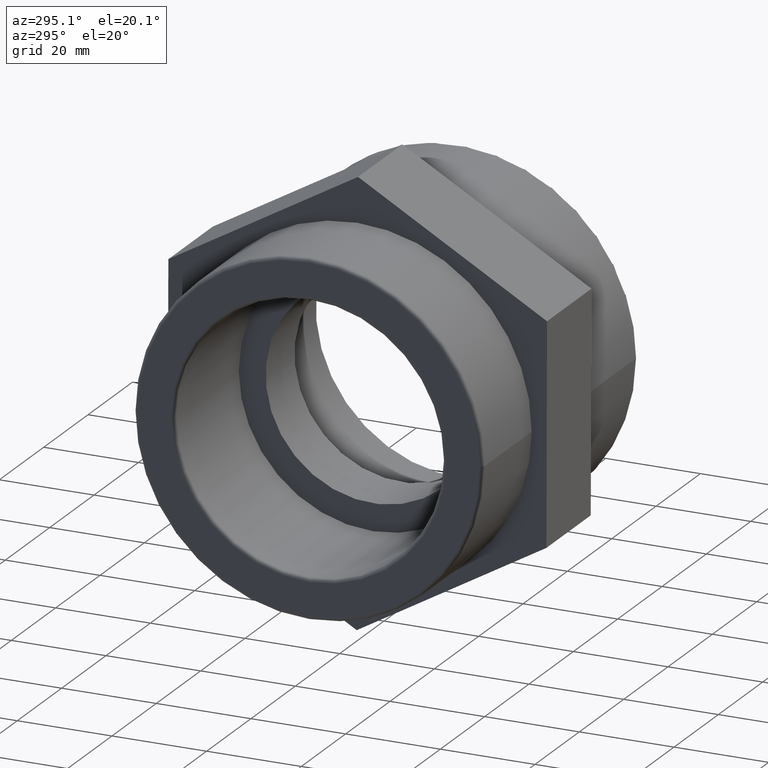
[diagram: clean part render]
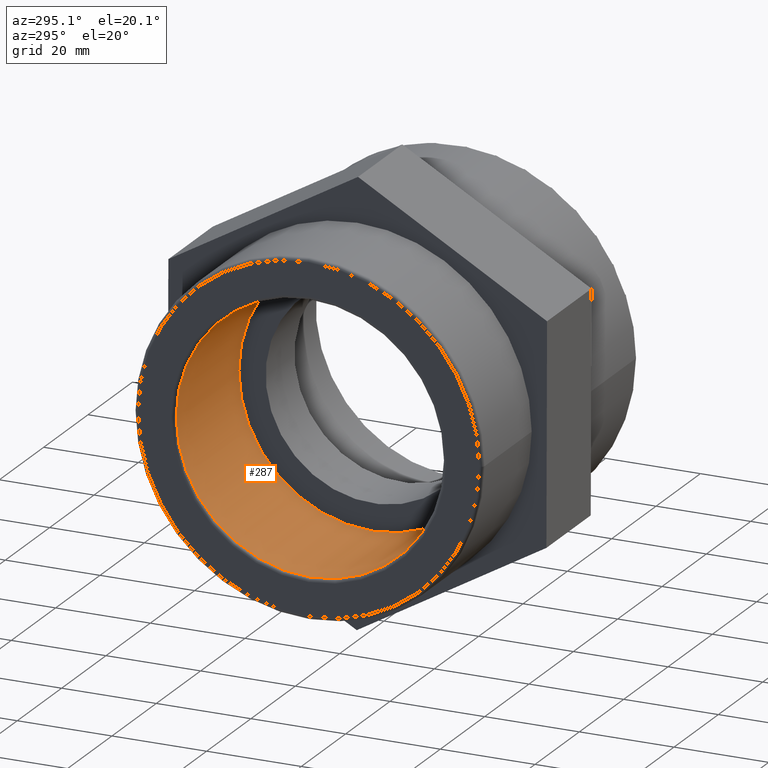
[diagram: same view with one face highlighted and labeled with its STEP entity id]
A machine part, auxiliary view. The second image highlights one B-rep face of the part: STEP entity #287.
In plain terms, the highlighted cylindrical surface (bore or boss wall) has radius 28.328 mm, axis along (-1, -0, 0).
Its self-contained STEP definition (entity closure, byte-faithful):
#53=CYLINDRICAL_SURFACE('',#319,28.328);
#75=FACE_BOUND('',#119,.T.);
#90=FACE_OUTER_BOUND('',#118,.T.);
#118=EDGE_LOOP('',(#226));
#119=EDGE_LOOP('',(#227));
#147=CIRCLE('',#316,28.328);
#149=CIRCLE('',#320,28.328);
#161=VERTEX_POINT('',#449);
#163=VERTEX_POINT('',#455);
#187=EDGE_CURVE('',#161,#161,#147,.T.);
#189=EDGE_CURVE('',#163,#163,#149,.T.);
#226=ORIENTED_EDGE('',*,*,#189,.F.);
#227=ORIENTED_EDGE('',*,*,#187,.F.);
#287=ADVANCED_FACE('',(#90,#75),#53,.F.);
#316=AXIS2_PLACEMENT_3D('',#450,#366,#367);
#319=AXIS2_PLACEMENT_3D('',#454,#372,#373);
#320=AXIS2_PLACEMENT_3D('',#456,#374,#375);
#366=DIRECTION('center_axis',(1.,1.83697019872103E-16,0.));
#367=DIRECTION('ref_axis',(-1.81261701810624E-16,1.,6.12323399573677E-17));
#372=DIRECTION('center_axis',(-1.,-1.83697019872103E-16,0.));
#373=DIRECTION('ref_axis',(1.5676687724162E-16,-1.,0.));
#374=DIRECTION('center_axis',(-1.,-1.83697019872103E-16,0.));
#375=DIRECTION('ref_axis',(0.,0.,1.));
#449=CARTESIAN_POINT('',(-33.24816,-28.328,-5.20376917893693E-15));
#450=CARTESIAN_POINT('Origin',(-33.24816,1.38110767420641E-16,0.));
#454=CARTESIAN_POINT('Origin',(-19.5,2.66360678814549E-15,0.));
#455=CARTESIAN_POINT('',(-5.,-28.328,0.));
#456=CARTESIAN_POINT('Origin',(-5.,5.32721357629099E-15,0.));